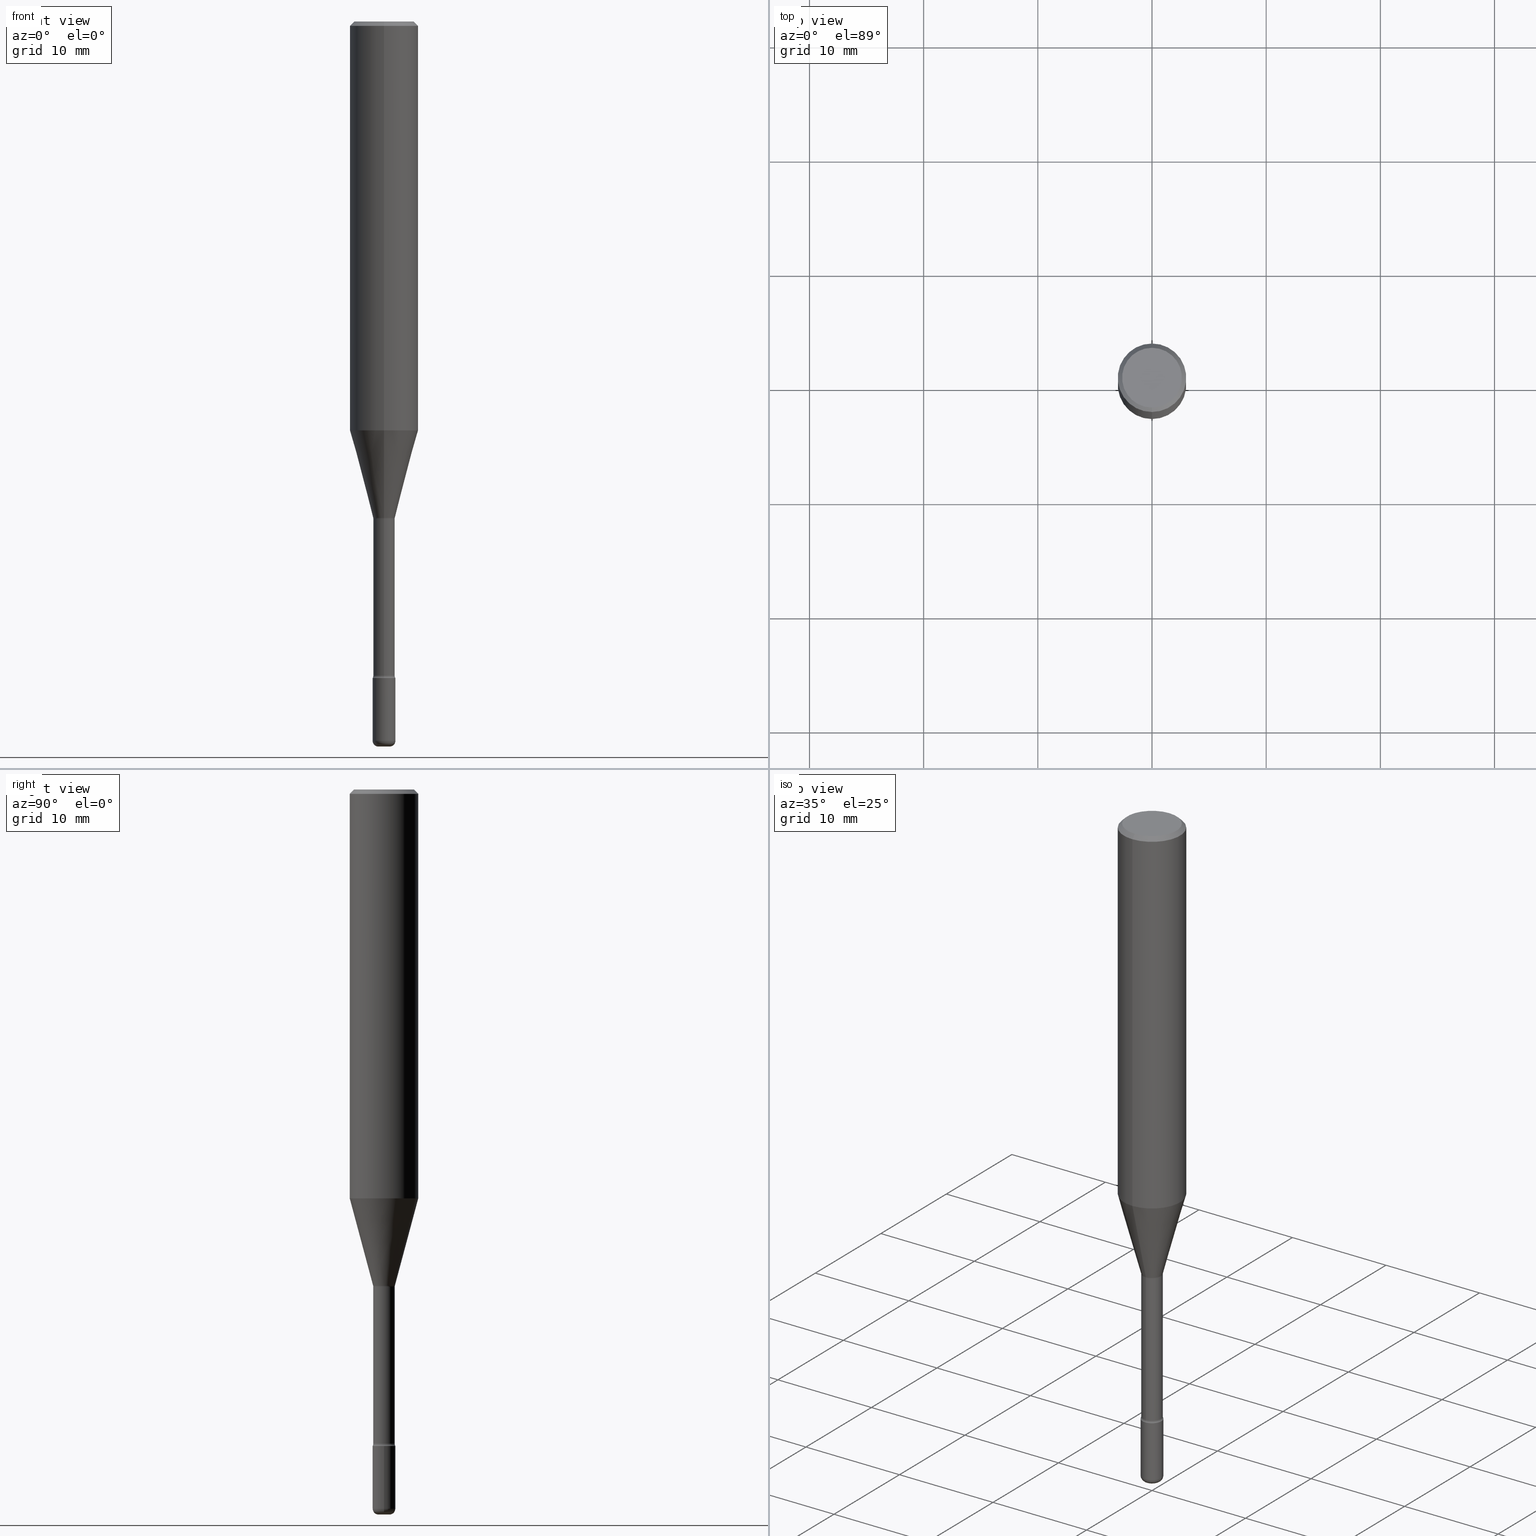
[diagram: canonical four-view strip — front | top / right | iso, engineering-drawing reading convention]
A machine part, canonical four-view strip (front | top / right | iso — engineering-drawing reading convention). The complete STEP part file that produces these views, byte-faithful:
ISO-10303-21;
HEADER;
FILE_DESCRIPTION (( 'STEP AP203' ),
    '1' );
FILE_NAME ('05355.STEP',
    '2024-03-06T20:02:07',
    ( '' ),
    ( '' ),
    'SwSTEP 2.0',
    'SolidWorks 2023',
    '' );
FILE_SCHEMA (( 'CONFIG_CONTROL_DESIGN' ));
ENDSEC;

DATA;
#1 = CARTESIAN_POINT ( 'NONE',  ( 0.03935000000000008630, -8.934700746099610252E-15, -2.480300000000000171 ) ) ;
#2 = VECTOR ( 'NONE', #198, 39.37007874015748854 ) ;
#3 = CARTESIAN_POINT ( 'NONE',  ( 7.031006082703593828E-46, -1.004986571345311282E-31, -2.876753408151994532E-17 ) ) ;
#4 = DIRECTION ( 'NONE',  ( -1.000000000000000000, 7.105427357601014480E-15, 0.000000000000000000 ) ) ;
#5 = EDGE_CURVE ( 'NONE', #390, #466, #58, .T. ) ;
#6 = DIRECTION ( 'NONE',  ( 2.438088387897960049E-29, -3.491481338843145188E-15, -1.000000000000000000 ) ) ;
#7 = ORIENTED_EDGE ( 'NONE', *, *, #530, .F. ) ;
#8 = CC_DESIGN_SECURITY_CLASSIFICATION ( #184, ( #201 ) ) ;
#9 = DIRECTION ( 'NONE',  ( -2.445468806185136597E-29, 3.491481338843145583E-15, 1.000000000000000000 ) ) ;
#10 = DATE_TIME_ROLE ( 'classification_date' ) ;
#11 = DIRECTION ( 'NONE',  ( 1.000000000000000000, -6.982962677686264344E-15, 4.883557194083111780E-29 ) ) ;
#12 = TOROIDAL_SURFACE ( 'NONE', #133, 0.05200000000000006006, 0.01500000000000001506 ) ;
#13 = CARTESIAN_POINT ( 'NONE',  ( 0.01965000000000000427, -8.797136381349191038E-15, -2.480300000000000171 ) ) ;
#14 = LENGTH_MEASURE_WITH_UNIT ( LENGTH_MEASURE( 0.02539999999999999897 ), #508 );
#15 = AXIS2_PLACEMENT_3D ( 'NONE', #202, #208, #379 ) ;
#16 = LOCAL_TIME ( 15, 2, 7.000000000000000000, #98 ) ;
#17 = DIRECTION ( 'NONE',  ( 1.000000000000000000, -7.105427357601001070E-15, 4.926316894222029901E-29 ) ) ;
#18 = CARTESIAN_POINT ( 'NONE',  ( -2.583696190743369715E-16, -0.03700000000000792238, -2.255739137763241420 ) ) ;
#19 = CC_DESIGN_PERSON_AND_ORGANIZATION_ASSIGNMENT ( #407, #226, ( #201 ) ) ;
#20 = ORIENTED_EDGE ( 'NONE', *, *, #297, .T. ) ;
#21 = CC_DESIGN_PERSON_AND_ORGANIZATION_ASSIGNMENT ( #235, #504, ( #65 ) ) ;
#22 = CARTESIAN_POINT ( 'NONE',  ( -2.619386993237965275E-16, -0.03751111260566995093, -1.710692501787273390 ) ) ;
#23 = AXIS2_PLACEMENT_3D ( 'NONE', #3, #179, #520 ) ;
#24 = ORIENTED_EDGE ( 'NONE', *, *, #32, .T. ) ;
#25 = EDGE_CURVE ( 'NONE', #571, #527, #319, .T. ) ;
#26 = AXIS2_PLACEMENT_3D ( 'NONE', #155, #412, #328 ) ;
#27 = CYLINDRICAL_SURFACE ( 'NONE', #176, 0.03700000000000002592 ) ;
#28 = CIRCLE ( 'NONE', #254, 0.01500000000000002720 ) ;
#29 = ORIENTED_EDGE ( 'NONE', *, *, #498, .T. ) ;
#30 = EDGE_CURVE ( 'NONE', #366, #70, #308, .T. ) ;
#31 = CARTESIAN_POINT ( 'NONE',  ( -7.587710785535310407E-16, -0.1031000000000000111, 3.312158576516512539E-16 ) ) ;
#32 = EDGE_CURVE ( 'NONE', #304, #246, #361, .T. ) ;
#33 = ORIENTED_EDGE ( 'NONE', *, *, #395, .T. ) ;
#34 = DIRECTION ( 'NONE',  ( -6.982962677686265922E-15, -1.000000000000000000, 3.491594488197586527E-15 ) ) ;
#35 = DIRECTION ( 'NONE',  ( -2.445389794413230210E-29, 3.491594488197586527E-15, 1.000000000000000000 ) ) ;
#36 = ORIENTED_EDGE ( 'NONE', *, *, #391, .T. ) ;
#37 = CC_DESIGN_APPROVAL ( #368, ( #184 ) ) ;
#38 = DIRECTION ( 'NONE',  ( 1.000000000000000000, -6.982962677686307731E-15, 0.000000000000000000 ) ) ;
#39 = ORIENTED_EDGE ( 'NONE', *, *, #352, .T. ) ;
#40 = DIRECTION ( 'NONE',  ( -6.982962677686265133E-15, -1.000000000000000000, 3.491594488197586922E-15 ) ) ;
#41 = CARTESIAN_POINT ( 'NONE',  ( 4.183309985249835233E-29, -5.973044510241383254E-15, -1.710692501787273390 ) ) ;
#42 = FACE_OUTER_BOUND ( 'NONE', #112, .T. ) ;
#43 = CONICAL_SURFACE ( 'NONE', #415, 0.03751111260566397654, 0.2617993877991500740 ) ;
#44 = CARTESIAN_POINT ( 'NONE',  ( -2.583696190743498891E-16, -0.03700000000000598643, -1.714574787463811312 ) ) ;
#45 = ADVANCED_FACE ( 'NONE', ( #42 ), #12, .F. ) ;
#46 = CARTESIAN_POINT ( 'NONE',  ( 5.536052283441912610E-29, -7.904015454873113525E-15, -2.263800000000000257 ) ) ;
#47 = FACE_OUTER_BOUND ( 'NONE', #84, .T. ) ;
#48 = VECTOR ( 'NONE', #264, 39.37007874015748854 ) ;
#49 = PRODUCT ( '05355', '05355', '', ( #500 ) ) ;
#50 = PERSON_AND_ORGANIZATION ( #135, #533 ) ;
#51 = CARTESIAN_POINT ( 'NONE',  ( 2.629008122312372037E-16, 0.03700000000000002592, 3.488844028279352540E-16 ) ) ;
#52 = TOROIDAL_SURFACE ( 'NONE', #64, 0.01965000000000000427, 0.01970000000000016877 ) ;
#53 = CALENDAR_DATE ( 2024, 6, 3 ) ;
#54 = LOCAL_TIME ( 15, 2, 7.000000000000000000, #467 ) ;
#55 = DIRECTION ( 'NONE',  ( -6.982962677686265922E-15, -1.000000000000000000, 3.487819265831411744E-15 ) ) ;
#56 = CALENDAR_DATE ( 2024, 6, 3 ) ;
#57 = FACE_OUTER_BOUND ( 'NONE', #128, .T. ) ;
#58 = CIRCLE ( 'NONE', #491, 0.1031000000000000111 ) ;
#59 = APPLICATION_PROTOCOL_DEFINITION ( 'international standard', 'config_control_design', 1994, #288 ) ;
#60 = CARTESIAN_POINT ( 'NONE',  ( 6.065496279980994755E-29, -8.659921164732655335E-15, -2.480300000000000171 ) ) ;
#61 = CC_DESIGN_DATE_AND_TIME_ASSIGNMENT ( #230, #10, ( #184 ) ) ;
#62 = VERTEX_POINT ( 'NONE', #1 ) ;
#63 = COORDINATED_UNIVERSAL_TIME_OFFSET ( 5, 0, .BEHIND. ) ;
#64 = AXIS2_PLACEMENT_3D ( 'NONE', #374, #473, #162 ) ;
#65 = PRODUCT_DEFINITION ( 'UNKNOWN', '', #201, #558 ) ;
#66 = EDGE_LOOP ( 'NONE', ( #418, #430, #199, #354 ) ) ;
#67 = CALENDAR_DATE ( 2024, 6, 3 ) ;
#68 = ORIENTED_EDGE ( 'NONE', *, *, #481, .F. ) ;
#69 = CARTESIAN_POINT ( 'NONE',  ( 4.183309985249835233E-29, -5.973044510241383254E-15, -1.710692501787273390 ) ) ;
#70 = VERTEX_POINT ( 'NONE', #342 ) ;
#71 = ADVANCED_FACE ( 'NONE', ( #521 ), #442, .T. ) ;
#72 = FACE_OUTER_BOUND ( 'NONE', #160, .T. ) ;
#73 = CIRCLE ( 'NONE', #127, 0.01965000000000000774 ) ;
#74 = ORIENTED_EDGE ( 'NONE', *, *, #476, .T. ) ;
#75 = FACE_OUTER_BOUND ( 'NONE', #272, .T. ) ;
#76 = FACE_OUTER_BOUND ( 'NONE', #326, .T. ) ;
#77 = VERTEX_POINT ( 'NONE', #345 ) ;
#78 = DIRECTION ( 'NONE',  ( -6.982962677686265133E-15, -1.000000000000000000, 3.491594488197586922E-15 ) ) ;
#79 = CARTESIAN_POINT ( 'NONE',  ( 7.031006082703593828E-46, -1.004986571345311282E-31, -2.876753408151994532E-17 ) ) ;
#80 = EDGE_CURVE ( 'NONE', #390, #140, #210, .T. ) ;
#81 = CIRCLE ( 'NONE', #157, 0.03700000000000004674 ) ;
#82 = CARTESIAN_POINT ( 'NONE',  ( 4.183309985249835233E-29, -5.973044510241383254E-15, -1.710692501787273390 ) ) ;
#83 = CARTESIAN_POINT ( 'NONE',  ( 4.192939158614261028E-29, -5.986405874480849195E-15, -1.714574787463811312 ) ) ;
#84 = EDGE_LOOP ( 'NONE', ( #525, #490, #484, #483 ) ) ;
#85 = DIRECTION ( 'NONE',  ( -6.982962677686266711E-15, -1.000000000000000000, 3.491594488197586527E-15 ) ) ;
#86 = CARTESIAN_POINT ( 'NONE',  ( 5.516339696290963268E-29, -7.875871104798485207E-15, -2.255739137763241420 ) ) ;
#87 = CC_DESIGN_DATE_AND_TIME_ASSIGNMENT ( #279, #283, ( #65 ) ) ;
#88 = CARTESIAN_POINT ( 'NONE',  ( -3.631140592396439489E-16, -0.05200000000000598588, -1.714574787463810868 ) ) ;
#89 = ORIENTED_EDGE ( 'NONE', *, *, #396, .F. ) ;
#90 = CIRCLE ( 'NONE', #404, 0.03700000000000004674 ) ;
#91 = APPROVAL_PERSON_ORGANIZATION ( #371, #327, #273 ) ;
#92 = DIRECTION ( 'NONE',  ( 4.937700262164546464E-15, 0.7071067811865449082, -0.7071067811865501263 ) ) ;
#93 = DIRECTION ( 'NONE',  ( 1.000000000000000000, -6.982962677686266711E-15, 4.876176775795936353E-29 ) ) ;
#94 = CYLINDRICAL_SURFACE ( 'NONE', #294, 0.1180999999999999966 ) ;
#95 = VECTOR ( 'NONE', #364, 39.37007874015748143 ) ;
#96 = PLANE ( 'NONE',  #531 ) ;
#97 = ORIENTED_EDGE ( 'NONE', *, *, #169, .F. ) ;
#98 = COORDINATED_UNIVERSAL_TIME_OFFSET ( 5, 0, .BEHIND. ) ;
#99 = PLANE ( 'NONE',  #219 ) ;
#100 = CIRCLE ( 'NONE', #244, 0.03699999999999999817 ) ;
#101 = CIRCLE ( 'NONE', #182, 0.03935000000000000303 ) ;
#102 =( CONVERSION_BASED_UNIT ( 'INCH', #14 ) LENGTH_UNIT ( ) NAMED_UNIT ( #271 ) );
#103 = APPROVAL_PERSON_ORGANIZATION ( #188, #368, #287 ) ;
#104 = CARTESIAN_POINT ( 'NONE',  ( 0.01965000000000000774, -8.865918563724402223E-15, -2.500000000000000444 ) ) ;
#105 = ORIENTED_EDGE ( 'NONE', *, *, #209, .F. ) ;
#106 = DIRECTION ( 'NONE',  ( -2.445468806185136597E-29, 3.491481338843145583E-15, 1.000000000000000000 ) ) ;
#107 = CIRCLE ( 'NONE', #23, 0.1031000000000000111 ) ;
#108 = EDGE_CURVE ( 'NONE', #466, #390, #107, .T. ) ;
#109 = ORIENTED_EDGE ( 'NONE', *, *, #401, .F. ) ;
#110 = DATE_AND_TIME ( #67, #54 ) ;
#111 = AXIS2_PLACEMENT_3D ( 'NONE', #113, #565, #158 ) ;
#112 = EDGE_LOOP ( 'NONE', ( #560, #239, #449, #120 ) ) ;
#113 = CARTESIAN_POINT ( 'NONE',  ( 5.516339696290963268E-29, -7.875871104798485207E-15, -2.255739137763241420 ) ) ;
#114 = VERTEX_POINT ( 'NONE', #177 ) ;
#115 = AXIS2_PLACEMENT_3D ( 'NONE', #433, #256, #125 ) ;
#116 = CARTESIAN_POINT ( 'NONE',  ( 5.536052283441912610E-29, -7.904015454873113525E-15, -2.263800000000000257 ) ) ;
#117 = ORIENTED_EDGE ( 'NONE', *, *, #370, .F. ) ;
#118 = VECTOR ( 'NONE', #227, 39.37007874015748143 ) ;
#119 = LOCAL_TIME ( 15, 2, 7.000000000000000000, #152 ) ;
#120 = ORIENTED_EDGE ( 'NONE', *, *, #25, .F. ) ;
#121 = DIRECTION ( 'NONE',  ( -2.445389794413230210E-29, 3.491594488197586133E-15, 1.000000000000000000 ) ) ;
#122 = DIRECTION ( 'NONE',  ( -2.445389794413230210E-29, 3.491594488197586527E-15, 1.000000000000000000 ) ) ;
#123 = CARTESIAN_POINT ( 'NONE',  ( 7.199434520694541042E-16, 0.1031000000000000111, -1.353304593283080756E-16 ) ) ;
#124 = EDGE_CURVE ( 'NONE', #546, #140, #505, .T. ) ;
#125 = DIRECTION ( 'NONE',  ( -6.982962677686266711E-15, -1.000000000000000000, 0.000000000000000000 ) ) ;
#126 = FACE_OUTER_BOUND ( 'NONE', #411, .T. ) ;
#127 = AXIS2_PLACEMENT_3D ( 'NONE', #359, #545, #142 ) ;
#128 = EDGE_LOOP ( 'NONE', ( #36, #24 ) ) ;
#129 = ADVANCED_BREP_SHAPE_REPRESENTATION ( '05355', ( #489, #493, #348 ), #301 ) ;
#130 = ORIENTED_EDGE ( 'NONE', *, *, #30, .F. ) ;
#131 = EDGE_CURVE ( 'NONE', #366, #339, #144, .T. ) ;
#132 = FACE_OUTER_BOUND ( 'NONE', #463, .T. ) ;
#133 = AXIS2_PLACEMENT_3D ( 'NONE', #86, #171, #260 ) ;
#134 = CARTESIAN_POINT ( 'NONE',  ( 3.668084691619852076E-31, -5.237391732296389553E-17, -0.01500000000000002720 ) ) ;
#135 = PERSON ( 'UNSPECIFIED', 'UNSPECIFIED', 'UNSPECIFIED', ('UNSPECIFIED'), ('UNSPECIFIED'), ('UNSPECIFIED') ) ;
#136 = DIRECTION ( 'NONE',  ( 1.000000000000000000, -6.982962677686244622E-15, 0.000000000000000000 ) ) ;
#137 = DIRECTION ( 'NONE',  ( -2.445389794413230210E-29, 3.491594488197586527E-15, 1.000000000000000000 ) ) ;
#138 = VECTOR ( 'NONE', #332, 39.37007874015748143 ) ;
#139 = FACE_OUTER_BOUND ( 'NONE', #549, .T. ) ;
#140 = VERTEX_POINT ( 'NONE', #478 ) ;
#141 = PERSON_AND_ORGANIZATION ( #135, #533 ) ;
#142 = DIRECTION ( 'NONE',  ( 1.000000000000000000, -6.982962677686307731E-15, 0.000000000000000000 ) ) ;
#143 = CARTESIAN_POINT ( 'NONE',  ( 5.535873416592669930E-29, -7.904271602381696362E-15, -2.263800000000000257 ) ) ;
#144 = CIRCLE ( 'NONE', #115, 0.03751111260566397654 ) ;
#145 = APPROVAL_STATUS ( 'not_yet_approved' ) ;
#146 = DIRECTION ( 'NONE',  ( -6.982962677686266711E-15, -1.000000000000000000, 0.000000000000000000 ) ) ;
#147 = AXIS2_PLACEMENT_3D ( 'NONE', #250, #212, #38 ) ;
#148 = CARTESIAN_POINT ( 'NONE',  ( 8.391509709326781971E-16, 0.1180999999999999966, 6.571608983511112252E-17 ) ) ;
#149 = DIRECTION ( 'NONE',  ( -6.982962677686266711E-15, -1.000000000000000000, 3.491481338843145583E-15 ) ) ;
#150 = ORIENTED_EDGE ( 'NONE', *, *, #108, .F. ) ;
#151 = EDGE_CURVE ( 'NONE', #339, #366, #258, .T. ) ;
#152 = COORDINATED_UNIVERSAL_TIME_OFFSET ( 5, 0, .BEHIND. ) ;
#153 = ORIENTED_EDGE ( 'NONE', *, *, #261, .F. ) ;
#154 = APPROVAL_STATUS ( 'not_yet_approved' ) ;
#155 = CARTESIAN_POINT ( 'NONE',  ( 3.447830094494486299E-29, -4.922906189304403806E-15, -1.409930679506165019 ) ) ;
#156 = VERTEX_POINT ( 'NONE', #180 ) ;
#157 = AXIS2_PLACEMENT_3D ( 'NONE', #532, #524, #314 ) ;
#158 = DIRECTION ( 'NONE',  ( -6.982962677686265133E-15, -1.000000000000000000, 3.491594488197586527E-15 ) ) ;
#159 = AXIS2_PLACEMENT_3D ( 'NONE', #528, #441, #136 ) ;
#160 = EDGE_LOOP ( 'NONE', ( #168, #502, #241, #68 ) ) ;
#161 = ORIENTED_EDGE ( 'NONE', *, *, #32, .F. ) ;
#162 = DIRECTION ( 'NONE',  ( 1.000000000000000000, -6.982962677686264344E-15, 4.883557194083111780E-29 ) ) ;
#163 = EDGE_CURVE ( 'NONE', #77, #403, #557, .T. ) ;
#164 = CARTESIAN_POINT ( 'NONE',  ( 5.535873416592669930E-29, -7.904271602381696362E-15, -2.263800000000000257 ) ) ;
#165 = ORIENTED_EDGE ( 'NONE', *, *, #550, .F. ) ;
#166 = DIRECTION ( 'NONE',  ( -2.445468806185136877E-29, 3.491481338843145188E-15, 1.000000000000000000 ) ) ;
#167 = AXIS2_PLACEMENT_3D ( 'NONE', #311, #277, #448 ) ;
#168 = ORIENTED_EDGE ( 'NONE', *, *, #151, .T. ) ;
#169 = EDGE_CURVE ( 'NONE', #197, #554, #451, .T. ) ;
#170 = LINE ( 'NONE', #336, #138 ) ;
#171 = DIRECTION ( 'NONE',  ( -2.445389794413230210E-29, 3.491594488197586527E-15, 1.000000000000000000 ) ) ;
#172 = UNCERTAINTY_MEASURE_WITH_UNIT (LENGTH_MEASURE( 1.000000000000000082E-05 ), #102, 'distance_accuracy_value', 'NONE');
#173 = ORIENTED_EDGE ( 'NONE', *, *, #175, .F. ) ;
#174 = DIRECTION ( 'NONE',  ( -6.982962677686266711E-15, -1.000000000000000000, 0.000000000000000000 ) ) ;
#175 = EDGE_CURVE ( 'NONE', #292, #140, #497, .T. ) ;
#176 = AXIS2_PLACEMENT_3D ( 'NONE', #385, #392, #78 ) ;
#177 = CARTESIAN_POINT ( 'NONE',  ( 2.795985665216547635E-16, 0.03934999999999209963, -2.263800000000000257 ) ) ;
#178 = CARTESIAN_POINT ( 'NONE',  ( 3.447830094494486299E-29, -4.922906189304403806E-15, -1.409930679506165019 ) ) ;
#179 = DIRECTION ( 'NONE',  ( -2.445389794413230210E-29, 3.491594488197586527E-15, 1.000000000000000000 ) ) ;
#180 = CARTESIAN_POINT ( 'NONE',  ( 2.712496893764736677E-16, 0.03699999999999217110, -2.255739137763241420 ) ) ;
#181 = DIRECTION ( 'NONE',  ( -1.000000000000000000, 6.982962677686265922E-15, -4.876176775795935793E-29 ) ) ;
#182 = AXIS2_PLACEMENT_3D ( 'NONE', #164, #562, #431 ) ;
#183 = ORIENTED_EDGE ( 'NONE', *, *, #487, .F. ) ;
#184 = SECURITY_CLASSIFICATION ( '', '', #454 ) ;
#185 = ADVANCED_FACE ( 'NONE', ( #537 ), #488, .T. ) ;
#186 = DATE_AND_TIME ( #56, #119 ) ;
#187 = DIRECTION ( 'NONE',  ( -2.445389794413230210E-29, 3.491594488197586527E-15, 1.000000000000000000 ) ) ;
#188 = PERSON_AND_ORGANIZATION ( #135, #533 ) ;
#189 = LINE ( 'NONE', #148, #194 ) ;
#190 = DIRECTION ( 'NONE',  ( -6.982962677686265922E-15, -1.000000000000000000, 3.491594488197586133E-15 ) ) ;
#191 =( NAMED_UNIT ( * ) PLANE_ANGLE_UNIT ( ) SI_UNIT ( $, .RADIAN. ) );
#192 = ADVANCED_FACE ( 'NONE', ( #353 ), #458, .T. ) ;
#193 = DIRECTION ( 'NONE',  ( 1.000000000000000000, -6.982962677686265922E-15, 4.876176775795935793E-29 ) ) ;
#194 = VECTOR ( 'NONE', #121, 39.37007874015748143 ) ;
#195 = EDGE_CURVE ( 'NONE', #554, #197, #100, .T. ) ;
#196 = VERTEX_POINT ( 'NONE', #104 ) ;
#197 = VERTEX_POINT ( 'NONE', #360 ) ;
#198 = DIRECTION ( 'NONE',  ( -1.807323732225328562E-15, -0.2588190451025179639, 0.9659258262890690894 ) ) ;
#199 = ORIENTED_EDGE ( 'NONE', *, *, #391, .F. ) ;
#200 = AXIS2_PLACEMENT_3D ( 'NONE', #455, #534, #55 ) ;
#201 = PRODUCT_DEFINITION_FORMATION_WITH_SPECIFIED_SOURCE ( 'ANY', '', #49, .NOT_KNOWN. ) ;
#202 = CARTESIAN_POINT ( 'NONE',  ( 4.192939158614261028E-29, -5.986405874480849195E-15, -1.714574787463811312 ) ) ;
#203 = ORIENTED_EDGE ( 'NONE', *, *, #395, .F. ) ;
#204 = FACE_OUTER_BOUND ( 'NONE', #330, .T. ) ;
#205 = DIRECTION ( 'NONE',  ( -2.445468806185136597E-29, 3.491481338843145583E-15, 1.000000000000000000 ) ) ;
#206 = ORIENTED_EDGE ( 'NONE', *, *, #261, .T. ) ;
#207 = DIRECTION ( 'NONE',  ( 7.105427357601001859E-15, 1.000000000000000000, 0.000000000000000000 ) ) ;
#208 = DIRECTION ( 'NONE',  ( -2.445389794413230210E-29, 3.491594488197586527E-15, 1.000000000000000000 ) ) ;
#209 = EDGE_CURVE ( 'NONE', #114, #527, #253, .T. ) ;
#210 = LINE ( 'NONE', #397, #281 ) ;
#211 = AXIS2_PLACEMENT_3D ( 'NONE', #116, #205, #381 ) ;
#212 = DIRECTION ( 'NONE',  ( -2.445468806185136597E-29, 3.491481338843145583E-15, 1.000000000000000000 ) ) ;
#213 = CARTESIAN_POINT ( 'NONE',  ( -3.631140592396311299E-16, -0.05200000000000794265, -2.255739137763241420 ) ) ;
#214 = DIRECTION ( 'NONE',  ( -2.445389794413230210E-29, 3.491594488197586527E-15, 1.000000000000000000 ) ) ;
#215 = EDGE_LOOP ( 'NONE', ( #278, #150, #406, #333 ) ) ;
#216 = AXIS2_PLACEMENT_3D ( 'NONE', #82, #438, #146 ) ;
#217 = DIRECTION ( 'NONE',  ( 1.000000000000000000, -6.982962677686269077E-15, 0.000000000000000000 ) ) ;
#218 = CARTESIAN_POINT ( 'NONE',  ( -1.169113584055446105E-44, 1.669184350826100908E-30, 4.780733988912460139E-16 ) ) ;
#219 = AXIS2_PLACEMENT_3D ( 'NONE', #46, #274, #193 ) ;
#220 = DIRECTION ( 'NONE',  ( -2.445389794413230210E-29, 3.491594488197586527E-15, 1.000000000000000000 ) ) ;
#221 = CARTESIAN_POINT ( 'NONE',  ( 0.03935000000000000303, -8.178795036240066864E-15, -2.263800000000000257 ) ) ;
#222 = CLOSED_SHELL ( 'NONE', ( #538, #71, #45, #517, #507, #334, #499, #398, #224, #453, #293, #432, #377, #378 ) ) ;
#223 = PLANE ( 'NONE',  #237 ) ;
#224 = ADVANCED_FACE ( 'NONE', ( #402 ), #522, .T. ) ;
#225 = ORIENTED_EDGE ( 'NONE', *, *, #305, .F. ) ;
#226 = PERSON_AND_ORGANIZATION_ROLE ( 'design_supplier' ) ;
#227 = DIRECTION ( 'NONE',  ( -2.445389794413230210E-29, 3.491594488197586133E-15, 1.000000000000000000 ) ) ;
#228 = VECTOR ( 'NONE', #92, 39.37007874015748143 ) ;
#229 = LOCAL_TIME ( 15, 2, 7.000000000000000000, #269 ) ;
#230 = DATE_AND_TIME ( #53, #16 ) ;
#231 = CARTESIAN_POINT ( 'NONE',  ( 6.065496279980994755E-29, -8.659921164732655335E-15, -2.480300000000000171 ) ) ;
#232 = APPROVAL_DATE_TIME ( #321, #559 ) ;
#233 = ADVANCED_FACE ( 'NONE', ( #57 ), #99, .T. ) ;
#234 = CARTESIAN_POINT ( 'NONE',  ( -8.246878922347136513E-16, -0.1181000000000049094, -1.409930679506164797 ) ) ;
#235 = PERSON_AND_ORGANIZATION ( #135, #533 ) ;
#236 = DIRECTION ( 'NONE',  ( -2.445468806185136597E-29, 3.491481338843145583E-15, 1.000000000000000000 ) ) ;
#237 = AXIS2_PLACEMENT_3D ( 'NONE', #316, #6, #181 ) ;
#238 = CARTESIAN_POINT ( 'NONE',  ( 0.000000000000000000, 0.000000000000000000, 0.000000000000000000 ) ) ;
#239 = ORIENTED_EDGE ( 'NONE', *, *, #460, .T. ) ;
#240 = APPROVAL_DATE_TIME ( #110, #368 ) ;
#241 = ORIENTED_EDGE ( 'NONE', *, *, #409, .F. ) ;
#242 = DIRECTION ( 'NONE',  ( 6.982962677686265922E-15, 1.000000000000000000, -3.491594488197586133E-15 ) ) ;
#243 = ORIENTED_EDGE ( 'NONE', *, *, #460, .F. ) ;
#244 = AXIS2_PLACEMENT_3D ( 'NONE', #542, #137, #322 ) ;
#245 = AXIS2_PLACEMENT_3D ( 'NONE', #178, #479, #303 ) ;
#246 = VERTEX_POINT ( 'NONE', #221 ) ;
#247 = CC_DESIGN_PERSON_AND_ORGANIZATION_ASSIGNMENT ( #50, #317, ( #201 ) ) ;
#248 = DIRECTION ( 'NONE',  ( -2.445389794413230210E-29, 3.491594488197586133E-15, 1.000000000000000000 ) ) ;
#249 = ORIENTED_EDGE ( 'NONE', *, *, #169, .T. ) ;
#250 = CARTESIAN_POINT ( 'NONE',  ( 6.113672015462842613E-29, -8.728703347107866520E-15, -2.500000000000000444 ) ) ;
#251 = EDGE_LOOP ( 'NONE', ( #475, #375, #74, #161 ) ) ;
#252 = CARTESIAN_POINT ( 'NONE',  ( 3.694822225953075958E-16, 0.05199999999999218442, -2.255739137763241864 ) ) ;
#253 = CIRCLE ( 'NONE', #485, 0.03935000000000000303 ) ;
#254 = AXIS2_PLACEMENT_3D ( 'NONE', #88, #262, #444 ) ;
#255 = DIRECTION ( 'NONE',  ( -2.445389794413230210E-29, 3.491594488197586527E-15, 1.000000000000000000 ) ) ;
#256 = DIRECTION ( 'NONE',  ( -2.445389794413230210E-29, 3.491594488197586527E-15, 1.000000000000000000 ) ) ;
#257 = ORIENTED_EDGE ( 'NONE', *, *, #131, .F. ) ;
#258 = CIRCLE ( 'NONE', #216, 0.03751111260566397654 ) ;
#259 = DIRECTION ( 'NONE',  ( 2.445389794413230210E-29, -3.491594488197586527E-15, -1.000000000000000000 ) ) ;
#260 = DIRECTION ( 'NONE',  ( -6.982962677686265133E-15, -1.000000000000000000, 3.491594488197586527E-15 ) ) ;
#261 = EDGE_CURVE ( 'NONE', #140, #546, #509, .T. ) ;
#262 = DIRECTION ( 'NONE',  ( -1.000000000000000000, 6.982962677686265922E-15, -4.883557194083112901E-29 ) ) ;
#263 = AXIS2_PLACEMENT_3D ( 'NONE', #446, #9, #93 ) ;
#264 = DIRECTION ( 'NONE',  ( 1.839019923739598738E-15, 0.2588190451025247363, 0.9659258262890673130 ) ) ;
#265 = FACE_OUTER_BOUND ( 'NONE', #268, .T. ) ;
#266 = CC_DESIGN_PERSON_AND_ORGANIZATION_ASSIGNMENT ( #457, #417, ( #49 ) ) ;
#267 = DIRECTION ( 'NONE',  ( -2.445389794413230210E-29, 3.491594488197586527E-15, 1.000000000000000000 ) ) ;
#268 = EDGE_LOOP ( 'NONE', ( #130, #510, #470, #7 ) ) ;
#269 = COORDINATED_UNIVERSAL_TIME_OFFSET ( 5, 0, .BEHIND. ) ;
#270 = CARTESIAN_POINT ( 'NONE',  ( 2.747795813670099893E-16, 0.03934999999999209963, -2.263800000000000257 ) ) ;
#271 = DIMENSIONAL_EXPONENTS ( 1.000000000000000000, 0.000000000000000000, 0.000000000000000000, 0.000000000000000000, 0.000000000000000000, 0.000000000000000000, 0.000000000000000000 ) ;
#272 = EDGE_LOOP ( 'NONE', ( #282, #284 ) ) ;
#273 = APPROVAL_ROLE ( '' ) ;
#274 = DIRECTION ( 'NONE',  ( -2.438088387897960049E-29, 3.491481338843145188E-15, 1.000000000000000000 ) ) ;
#275 = VECTOR ( 'NONE', #248, 39.37007874015748143 ) ;
#276 = ADVANCED_FACE ( 'NONE', ( #47 ), #424, .T. ) ;
#277 = DIRECTION ( 'NONE',  ( 2.445389794413230210E-29, -3.491594488197586527E-15, -1.000000000000000000 ) ) ;
#278 = ORIENTED_EDGE ( 'NONE', *, *, #80, .F. ) ;
#279 = DATE_AND_TIME ( #536, #416 ) ;
#280 = CARTESIAN_POINT ( 'NONE',  ( 3.694822225952939879E-16, 0.05199999999999401629, -1.714574787463811534 ) ) ;
#281 = VECTOR ( 'NONE', #563, 39.37007874015748143 ) ;
#282 = ORIENTED_EDGE ( 'NONE', *, *, #108, .T. ) ;
#283 = DATE_TIME_ROLE ( 'creation_date' ) ;
#284 = ORIENTED_EDGE ( 'NONE', *, *, #5, .T. ) ;
#285 = AXIS2_PLACEMENT_3D ( 'NONE', #252, #421, #207 ) ;
#286 = CONICAL_SURFACE ( 'NONE', #436, 0.1180999999999999966, 0.7853981633974480570 ) ;
#287 = APPROVAL_ROLE ( '' ) ;
#288 = APPLICATION_CONTEXT ( 'configuration controlled 3d designs of mechanical parts and assemblies' ) ;
#289 = ADVANCED_FACE ( 'NONE', ( #399 ), #223, .T. ) ;
#290 = ORIENTED_EDGE ( 'NONE', *, *, #151, .F. ) ;
#291 = ORIENTED_EDGE ( 'NONE', *, *, #195, .F. ) ;
#292 = VERTEX_POINT ( 'NONE', #234 ) ;
#293 = ADVANCED_FACE ( 'NONE', ( #139 ), #96, .F. ) ;
#294 = AXIS2_PLACEMENT_3D ( 'NONE', #218, #447, #526 ) ;
#295 = ORIENTED_EDGE ( 'NONE', *, *, #25, .T. ) ;
#296 = DIRECTION ( 'NONE',  ( -6.982962677686265922E-15, -1.000000000000000000, 3.487819265831411744E-15 ) ) ;
#297 = EDGE_CURVE ( 'NONE', #156, #197, #362, .T. ) ;
#298 = LINE ( 'NONE', #22, #2 ) ;
#299 = ORIENTED_EDGE ( 'NONE', *, *, #309, .T. ) ;
#300 = CIRCLE ( 'NONE', #310, 0.01500000000000002720 ) ;
#301 =( GEOMETRIC_REPRESENTATION_CONTEXT ( 3 ) GLOBAL_UNCERTAINTY_ASSIGNED_CONTEXT ( ( #172 ) ) GLOBAL_UNIT_ASSIGNED_CONTEXT ( ( #102, #191, #495 ) ) REPRESENTATION_CONTEXT ( 'NONE', 'WORKASPACE' ) );
#302 = ORIENTED_EDGE ( 'NONE', *, *, #5, .F. ) ;
#303 = DIRECTION ( 'NONE',  ( -6.982962677686265922E-15, -1.000000000000000000, 4.626330217890369336E-15 ) ) ;
#304 = VERTEX_POINT ( 'NONE', #410 ) ;
#305 = EDGE_CURVE ( 'NONE', #196, #62, #552, .T. ) ;
#306 = AXIS2_PLACEMENT_3D ( 'NONE', #529, #539, #4 ) ;
#307 = CARTESIAN_POINT ( 'NONE',  ( 8.246878922347483612E-16, 0.1180999999999999411, -0.01500000000000044006 ) ) ;
#308 = LINE ( 'NONE', #393, #48 ) ;
#309 = EDGE_CURVE ( 'NONE', #366, #197, #300, .T. ) ;
#310 = AXIS2_PLACEMENT_3D ( 'NONE', #280, #17, #414 ) ;
#311 = CARTESIAN_POINT ( 'NONE',  ( 3.668084691619852076E-31, -5.237391732296389553E-17, -0.01500000000000002720 ) ) ;
#312 = PRODUCT_DEFINITION_SHAPE ( 'NONE', 'NONE',  #65 ) ;
#313 = ORIENTED_EDGE ( 'NONE', *, *, #409, .T. ) ;
#314 = DIRECTION ( 'NONE',  ( -6.982962677686265133E-15, -1.000000000000000000, 0.000000000000000000 ) ) ;
#315 = APPLICATION_CONTEXT ( 'configuration controlled 3d designs of mechanical parts and assemblies' ) ;
#316 = CARTESIAN_POINT ( 'NONE',  ( 1.372152166165963216E-16, 0.01964999999999127861, -2.500000000000000000 ) ) ;
#317 = PERSON_AND_ORGANIZATION_ROLE ( 'creator' ) ;
#318 = CARTESIAN_POINT ( 'NONE',  ( -0.03935000000000008630, -8.380322598211055940E-15, -2.480300000000000171 ) ) ;
#319 = CIRCLE ( 'NONE', #548, 0.01500000000000001159 ) ;
#320 = DIRECTION ( 'NONE',  ( 1.000000000000000000, -6.982962677686266711E-15, 4.876176775795936353E-29 ) ) ;
#321 = DATE_AND_TIME ( #452, #229 ) ;
#322 = DIRECTION ( 'NONE',  ( -6.982962677686266711E-15, -1.000000000000000000, 0.000000000000000000 ) ) ;
#323 = CONICAL_SURFACE ( 'NONE', #365, 0.03751111260566397654, 0.2617993877991500740 ) ;
#324 = CARTESIAN_POINT ( 'NONE',  ( -8.246878922347479668E-16, -0.1180999999999999966, 8.904307079473809916E-16 ) ) ;
#325 = APPROVAL_DATE_TIME ( #186, #327 ) ;
#326 = EDGE_LOOP ( 'NONE', ( #358, #347, #428, #369 ) ) ;
#327 = APPROVAL ( #544, 'UNSPECIFIED' ) ;
#328 = DIRECTION ( 'NONE',  ( -6.982962677686265922E-15, -1.000000000000000000, 4.626330217890369336E-15 ) ) ;
#329 = EDGE_CURVE ( 'NONE', #403, #62, #435, .T. ) ;
#330 = EDGE_LOOP ( 'NONE', ( #243, #89, #295, #33 ) ) ;
#331 = VECTOR ( 'NONE', #166, 39.37007874015748143 ) ;
#332 = DIRECTION ( 'NONE',  ( -2.445468806185136877E-29, 3.491481338843145188E-15, 1.000000000000000000 ) ) ;
#333 = ORIENTED_EDGE ( 'NONE', *, *, #124, .T. ) ;
#334 = ADVANCED_FACE ( 'NONE', ( #72 ), #43, .T. ) ;
#335 = ORIENTED_EDGE ( 'NONE', *, *, #370, .T. ) ;
#336 = CARTESIAN_POINT ( 'NONE',  ( -0.03935000000000000303, 2.795985665215994447E-16, -1.935600958015305291E-30 ) ) ;
#337 = CARTESIAN_POINT ( 'NONE',  ( 5.516161466344729817E-29, -7.876126340225709197E-15, -2.255739137763241420 ) ) ;
#338 = AXIS2_PLACEMENT_3D ( 'NONE', #494, #106, #320 ) ;
#339 = VERTEX_POINT ( 'NONE', #389 ) ;
#340 = AXIS2_PLACEMENT_3D ( 'NONE', #566, #343, #34 ) ;
#341 = DIRECTION ( 'NONE',  ( -6.982962677686266711E-15, -1.000000000000000000, 0.000000000000000000 ) ) ;
#342 = CARTESIAN_POINT ( 'NONE',  ( 8.391509709327121181E-16, 0.1180999999999950423, -1.409930679506165685 ) ) ;
#343 = DIRECTION ( 'NONE',  ( -2.445389794413230210E-29, 3.491594488197586527E-15, 1.000000000000000000 ) ) ;
#344 = CC_DESIGN_PERSON_AND_ORGANIZATION_ASSIGNMENT ( #141, #492, ( #184 ) ) ;
#345 = CARTESIAN_POINT ( 'NONE',  ( -0.01965000000000000774, -8.484702148871030792E-15, -2.500000000000000444 ) ) ;
#346 = CARTESIAN_POINT ( 'NONE',  ( -2.747795813668993022E-16, -0.03935000000000791337, -2.263799999999999812 ) ) ;
#347 = ORIENTED_EDGE ( 'NONE', *, *, #530, .T. ) ;
#348 = AXIS2_PLACEMENT_3D ( 'NONE', #238, #363, #459 ) ;
#349 = DIRECTION ( 'NONE',  ( -6.982962677686266711E-15, -1.000000000000000000, 0.000000000000000000 ) ) ;
#350 = CARTESIAN_POINT ( 'NONE',  ( 8.391509709327129070E-16, 0.1180999999999999411, -0.01500000000000044006 ) ) ;
#351 = ORIENTED_EDGE ( 'NONE', *, *, #297, .F. ) ;
#352 = EDGE_CURVE ( 'NONE', #571, #554, #469, .T. ) ;
#353 = FACE_OUTER_BOUND ( 'NONE', #66, .T. ) ;
#354 = ORIENTED_EDGE ( 'NONE', *, *, #476, .F. ) ;
#355 = CIRCLE ( 'NONE', #147, 0.01965000000000000774 ) ;
#356 = CC_DESIGN_APPROVAL ( #559, ( #201 ) ) ;
#357 = DIRECTION ( 'NONE',  ( -6.982962677686266711E-15, -1.000000000000000000, 6.942434545525446301E-15 ) ) ;
#358 = ORIENTED_EDGE ( 'NONE', *, *, #413, .F. ) ;
#359 = CARTESIAN_POINT ( 'NONE',  ( 6.113672015462842613E-29, -8.728703347107866520E-15, -2.500000000000000444 ) ) ;
#360 = CARTESIAN_POINT ( 'NONE',  ( 2.629008122312923746E-16, 0.03699999999999400990, -1.714574787463811312 ) ) ;
#361 = CIRCLE ( 'NONE', #372, 0.03935000000000000303 ) ;
#362 = LINE ( 'NONE', #51, #118 ) ;
#363 = DIRECTION ( 'NONE',  ( 0.000000000000000000, 0.000000000000000000, 1.000000000000000000 ) ) ;
#364 = DIRECTION ( 'NONE',  ( -2.445389794413230210E-29, 3.491594488197586133E-15, 1.000000000000000000 ) ) ;
#365 = AXIS2_PLACEMENT_3D ( 'NONE', #41, #214, #174 ) ;
#366 = VERTEX_POINT ( 'NONE', #555 ) ;
#367 = APPLICATION_PROTOCOL_DEFINITION ( 'international standard', 'config_control_design', 1994, #315 ) ;
#368 = APPROVAL ( #145, 'UNSPECIFIED' ) ;
#369 = ORIENTED_EDGE ( 'NONE', *, *, #124, .F. ) ;
#370 = EDGE_CURVE ( 'NONE', #196, #77, #355, .T. ) ;
#371 = PERSON_AND_ORGANIZATION ( #135, #533 ) ;
#372 = AXIS2_PLACEMENT_3D ( 'NONE', #439, #386, #217 ) ;
#373 = ORIENTED_EDGE ( 'NONE', *, *, #195, .T. ) ;
#374 = CARTESIAN_POINT ( 'NONE',  ( 6.065496279980994755E-29, -8.659921164732655335E-15, -2.480300000000000171 ) ) ;
#375 = ORIENTED_EDGE ( 'NONE', *, *, #329, .T. ) ;
#376 = TOROIDAL_SURFACE ( 'NONE', #15, 0.05200000000000000455, 0.01500000000000002720 ) ;
#377 = ADVANCED_FACE ( 'NONE', ( #437 ), #27, .T. ) ;
#378 = ADVANCED_FACE ( 'NONE', ( #569 ), #376, .F. ) ;
#379 = DIRECTION ( 'NONE',  ( -6.982962677686266711E-15, -1.000000000000000000, 3.491594488197586527E-15 ) ) ;
#380 = ORIENTED_EDGE ( 'NONE', *, *, #309, .F. ) ;
#381 = DIRECTION ( 'NONE',  ( 1.000000000000000000, -6.982962677686269077E-15, 0.000000000000000000 ) ) ;
#382 = EDGE_LOOP ( 'NONE', ( #477, #20, #291, #543 ) ) ;
#383 = CLOSED_SHELL ( 'NONE', ( #192, #434, #233, #289, #276, #185 ) ) ;
#384 = CARTESIAN_POINT ( 'NONE',  ( 7.723156721521011834E-16, 0.1031000000000000111, -3.887509258146911569E-16 ) ) ;
#385 = CARTESIAN_POINT ( 'NONE',  ( -1.169113584055446105E-44, 1.669184350826100908E-30, 4.780733988912460139E-16 ) ) ;
#386 = DIRECTION ( 'NONE',  ( -2.445468806185136597E-29, 3.491481338843145583E-15, 1.000000000000000000 ) ) ;
#387 = CIRCLE ( 'NONE', #211, 0.03935000000000000303 ) ;
#388 = CIRCLE ( 'NONE', #245, 0.1180999999999999966 ) ;
#389 = CARTESIAN_POINT ( 'NONE',  ( -2.619386993237965275E-16, -0.03751111260566995093, -1.710692501787273390 ) ) ;
#390 = VERTEX_POINT ( 'NONE', #31 ) ;
#391 = EDGE_CURVE ( 'NONE', #246, #304, #387, .T. ) ;
#392 = DIRECTION ( 'NONE',  ( -2.445389794413230210E-29, 3.491594488197586527E-15, 1.000000000000000000 ) ) ;
#393 = CARTESIAN_POINT ( 'NONE',  ( 2.665324857223784301E-16, 0.03751111260565800909, -1.710692501787273390 ) ) ;
#394 = DIRECTION ( 'NONE',  ( -2.445389794413230210E-29, 3.491594488197586527E-15, 1.000000000000000000 ) ) ;
#395 = EDGE_CURVE ( 'NONE', #527, #114, #101, .T. ) ;
#396 = EDGE_CURVE ( 'NONE', #571, #156, #90, .T. ) ;
#397 = CARTESIAN_POINT ( 'NONE',  ( -8.102248135368174406E-16, -0.1181000000000000522, -0.01499999999999961607 ) ) ;
#398 = ADVANCED_FACE ( 'NONE', ( #76 ), #429, .T. ) ;
#399 = FACE_OUTER_BOUND ( 'NONE', #506, .T. ) ;
#400 = DIRECTION ( 'NONE',  ( 6.982962677686265922E-15, 1.000000000000000000, -3.487819265831411744E-15 ) ) ;
#401 = EDGE_CURVE ( 'NONE', #77, #196, #73, .T. ) ;
#402 = FACE_OUTER_BOUND ( 'NONE', #215, .T. ) ;
#403 = VERTEX_POINT ( 'NONE', #318 ) ;
#404 = AXIS2_PLACEMENT_3D ( 'NONE', #337, #35, #474 ) ;
#405 = DIRECTION ( 'NONE',  ( -6.982962677686266711E-15, -1.000000000000000000, 0.000000000000000000 ) ) ;
#406 = ORIENTED_EDGE ( 'NONE', *, *, #487, .T. ) ;
#407 = PERSON_AND_ORGANIZATION ( #135, #533 ) ;
#408 = DIRECTION ( 'NONE',  ( -2.445389794413229930E-29, 3.491594488197586133E-15, 1.000000000000000000 ) ) ;
#409 = EDGE_CURVE ( 'NONE', #292, #70, #465, .T. ) ;
#410 = CARTESIAN_POINT ( 'NONE',  ( -0.03935000000000000303, -8.002369743281284246E-15, -2.263800000000000257 ) ) ;
#411 = EDGE_LOOP ( 'NONE', ( #302, #468, #206, #183 ) ) ;
#412 = DIRECTION ( 'NONE',  ( -2.445389794413230210E-29, 3.491594488197586527E-15, 1.000000000000000000 ) ) ;
#413 = EDGE_CURVE ( 'NONE', #70, #546, #189, .T. ) ;
#414 = DIRECTION ( 'NONE',  ( 7.105427357601001859E-15, 1.000000000000000000, 0.000000000000000000 ) ) ;
#415 = AXIS2_PLACEMENT_3D ( 'NONE', #69, #255, #341 ) ;
#416 = LOCAL_TIME ( 15, 2, 7.000000000000000000, #63 ) ;
#417 = PERSON_AND_ORGANIZATION_ROLE ( 'design_owner' ) ;
#418 = ORIENTED_EDGE ( 'NONE', *, *, #540, .T. ) ;
#419 = SHAPE_DEFINITION_REPRESENTATION ( #312, #129 ) ;
#420 = ORIENTED_EDGE ( 'NONE', *, *, #550, .T. ) ;
#421 = DIRECTION ( 'NONE',  ( 1.000000000000000000, -7.105427357601001070E-15, 4.926316894222029901E-29 ) ) ;
#422 = AXIS2_PLACEMENT_3D ( 'NONE', #231, #501, #11 ) ;
#423 = EDGE_LOOP ( 'NONE', ( #351, #29, #39, #97 ) ) ;
#424 = TOROIDAL_SURFACE ( 'NONE', #422, 0.01965000000000000427, 0.01970000000000016877 ) ;
#425 = AXIS2_PLACEMENT_3D ( 'NONE', #83, #572, #85 ) ;
#426 = PLANE ( 'NONE',  #541 ) ;
#427 = CARTESIAN_POINT ( 'NONE',  ( -2.583696190743919945E-16, -0.03700000000000002592, 6.072623949545568724E-16 ) ) ;
#428 = ORIENTED_EDGE ( 'NONE', *, *, #175, .T. ) ;
#429 = CYLINDRICAL_SURFACE ( 'NONE', #340, 0.1180999999999999966 ) ;
#430 = ORIENTED_EDGE ( 'NONE', *, *, #440, .T. ) ;
#431 = DIRECTION ( 'NONE',  ( -6.982962677686266711E-15, -1.000000000000000000, 6.942434545525446301E-15 ) ) ;
#432 = ADVANCED_FACE ( 'NONE', ( #204 ), #496, .F. ) ;
#433 = CARTESIAN_POINT ( 'NONE',  ( 4.183309985249835233E-29, -5.973044510241383254E-15, -1.710692501787273390 ) ) ;
#434 = ADVANCED_FACE ( 'NONE', ( #519 ), #52, .T. ) ;
#435 = CIRCLE ( 'NONE', #471, 0.03935000000000000303 ) ;
#436 = AXIS2_PLACEMENT_3D ( 'NONE', #568, #259, #400 ) ;
#437 = FACE_OUTER_BOUND ( 'NONE', #423, .T. ) ;
#438 = DIRECTION ( 'NONE',  ( -2.445389794413230210E-29, 3.491594488197586527E-15, 1.000000000000000000 ) ) ;
#439 = CARTESIAN_POINT ( 'NONE',  ( 5.536052283441912610E-29, -7.904015454873113525E-15, -2.263800000000000257 ) ) ;
#440 = EDGE_CURVE ( 'NONE', #403, #304, #170, .T. ) ;
#441 = DIRECTION ( 'NONE',  ( -2.445468806185136597E-29, 3.491481338843145583E-15, 1.000000000000000000 ) ) ;
#442 = CYLINDRICAL_SURFACE ( 'NONE', #461, 0.03700000000000002592 ) ;
#443 = AXIS2_PLACEMENT_3D ( 'NONE', #13, #149, #462 ) ;
#444 = DIRECTION ( 'NONE',  ( -6.982962677686267499E-15, -1.000000000000000000, 0.000000000000000000 ) ) ;
#445 = CIRCLE ( 'NONE', #159, 0.03935000000000000303 ) ;
#446 = CARTESIAN_POINT ( 'NONE',  ( 0.000000000000000000, 0.000000000000000000, 0.000000000000000000 ) ) ;
#447 = DIRECTION ( 'NONE',  ( -2.445389794413230210E-29, 3.491594488197586527E-15, 1.000000000000000000 ) ) ;
#448 = DIRECTION ( 'NONE',  ( 6.982962677686265922E-15, 1.000000000000000000, -3.487819265831411744E-15 ) ) ;
#449 = ORIENTED_EDGE ( 'NONE', *, *, #209, .T. ) ;
#450 = PRODUCT_RELATED_PRODUCT_CATEGORY ( 'detail', '', ( #49 ) ) ;
#451 = CIRCLE ( 'NONE', #503, 0.03699999999999999817 ) ;
#452 = CALENDAR_DATE ( 2024, 6, 3 ) ;
#453 = ADVANCED_FACE ( 'NONE', ( #75 ), #426, .F. ) ;
#454 = SECURITY_CLASSIFICATION_LEVEL ( 'unclassified' ) ;
#455 = CARTESIAN_POINT ( 'NONE',  ( 3.668084691619852076E-31, -5.237391732296389553E-17, -0.01500000000000002720 ) ) ;
#456 = DIRECTION ( 'NONE',  ( 1.000000000000000000, -6.982962677686244622E-15, 0.000000000000000000 ) ) ;
#457 = PERSON_AND_ORGANIZATION ( #135, #533 ) ;
#458 = CYLINDRICAL_SURFACE ( 'NONE', #263, 0.03935000000000000303 ) ;
#459 = DIRECTION ( 'NONE',  ( 1.000000000000000000, 0.000000000000000000, 0.000000000000000000 ) ) ;
#460 = EDGE_CURVE ( 'NONE', #156, #114, #515, .T. ) ;
#461 = AXIS2_PLACEMENT_3D ( 'NONE', #518, #220, #40 ) ;
#462 = DIRECTION ( 'NONE',  ( 1.000000000000000000, -6.982962677686268288E-15, 0.000000000000000000 ) ) ;
#463 = EDGE_LOOP ( 'NONE', ( #313, #513, #153, #173 ) ) ;
#464 = APPROVAL_ROLE ( '' ) ;
#465 = CIRCLE ( 'NONE', #26, 0.1180999999999999966 ) ;
#466 = VERTEX_POINT ( 'NONE', #384 ) ;
#467 = COORDINATED_UNIVERSAL_TIME_OFFSET ( 5, 0, .BEHIND. ) ;
#468 = ORIENTED_EDGE ( 'NONE', *, *, #80, .T. ) ;
#469 = LINE ( 'NONE', #427, #275 ) ;
#470 = ORIENTED_EDGE ( 'NONE', *, *, #481, .T. ) ;
#471 = AXIS2_PLACEMENT_3D ( 'NONE', #60, #236, #456 ) ;
#472 = ORIENTED_EDGE ( 'NONE', *, *, #540, .F. ) ;
#473 = DIRECTION ( 'NONE',  ( -2.445468806185136597E-29, 3.491481338843145583E-15, 1.000000000000000000 ) ) ;
#474 = DIRECTION ( 'NONE',  ( -6.982962677686265133E-15, -1.000000000000000000, 0.000000000000000000 ) ) ;
#475 = ORIENTED_EDGE ( 'NONE', *, *, #440, .F. ) ;
#476 = EDGE_CURVE ( 'NONE', #62, #246, #511, .T. ) ;
#477 = ORIENTED_EDGE ( 'NONE', *, *, #396, .T. ) ;
#478 = CARTESIAN_POINT ( 'NONE',  ( -8.246878922347475723E-16, -0.1181000000000000522, -0.01499999999999961607 ) ) ;
#479 = DIRECTION ( 'NONE',  ( -2.445389794413230210E-29, 3.491594488197586527E-15, 1.000000000000000000 ) ) ;
#480 = DIRECTION ( 'NONE',  ( -6.982962677686265922E-15, -1.000000000000000000, 3.491594488197586527E-15 ) ) ;
#481 = EDGE_CURVE ( 'NONE', #339, #292, #298, .T. ) ;
#482 = FACE_OUTER_BOUND ( 'NONE', #512, .T. ) ;
#483 = ORIENTED_EDGE ( 'NONE', *, *, #329, .F. ) ;
#484 = ORIENTED_EDGE ( 'NONE', *, *, #305, .T. ) ;
#485 = AXIS2_PLACEMENT_3D ( 'NONE', #143, #267, #357 ) ;
#486 = CARTESIAN_POINT ( 'NONE',  ( 4.192803687022237208E-29, -5.986599877511191091E-15, -1.714574787463811312 ) ) ;
#487 = EDGE_CURVE ( 'NONE', #466, #546, #551, .T. ) ;
#488 = CYLINDRICAL_SURFACE ( 'NONE', #338, 0.03935000000000000303 ) ;
#489 = MANIFOLD_SOLID_BREP ( 'Body-Move/Copy2[1]', #383 ) ;
#490 = ORIENTED_EDGE ( 'NONE', *, *, #401, .T. ) ;
#491 = AXIS2_PLACEMENT_3D ( 'NONE', #79, #394, #480 ) ;
#492 = PERSON_AND_ORGANIZATION_ROLE ( 'classification_officer' ) ;
#493 = MANIFOLD_SOLID_BREP ( 'Body-Move/Copy2[2]', #222 ) ;
#494 = CARTESIAN_POINT ( 'NONE',  ( 0.000000000000000000, 0.000000000000000000, 0.000000000000000000 ) ) ;
#495 =( NAMED_UNIT ( * ) SI_UNIT ( $, .STERADIAN. ) SOLID_ANGLE_UNIT ( ) );
#496 = TOROIDAL_SURFACE ( 'NONE', #111, 0.05200000000000006006, 0.01500000000000001506 ) ;
#497 = LINE ( 'NONE', #324, #95 ) ;
#498 = EDGE_CURVE ( 'NONE', #156, #571, #81, .T. ) ;
#499 = ADVANCED_FACE ( 'NONE', ( #265 ), #323, .T. ) ;
#500 = MECHANICAL_CONTEXT ( 'NONE', #288, 'mechanical' ) ;
#501 = DIRECTION ( 'NONE',  ( -2.445468806185136597E-29, 3.491481338843145583E-15, 1.000000000000000000 ) ) ;
#502 = ORIENTED_EDGE ( 'NONE', *, *, #30, .T. ) ;
#503 = AXIS2_PLACEMENT_3D ( 'NONE', #486, #187, #405 ) ;
#504 = PERSON_AND_ORGANIZATION_ROLE ( 'creator' ) ;
#505 = CIRCLE ( 'NONE', #570, 0.1180999999999999966 ) ;
#506 = EDGE_LOOP ( 'NONE', ( #117, #109 ) ) ;
#507 = ADVANCED_FACE ( 'NONE', ( #132 ), #94, .T. ) ;
#508 =( LENGTH_UNIT ( ) NAMED_UNIT ( * ) SI_UNIT ( $, .METRE. ) );
#509 = CIRCLE ( 'NONE', #200, 0.1180999999999999966 ) ;
#510 = ORIENTED_EDGE ( 'NONE', *, *, #131, .T. ) ;
#511 = LINE ( 'NONE', #561, #331 ) ;
#512 = EDGE_LOOP ( 'NONE', ( #257, #299, #249, #165 ) ) ;
#513 = ORIENTED_EDGE ( 'NONE', *, *, #413, .T. ) ;
#514 = DIRECTION ( 'NONE',  ( 2.445389794413229930E-29, -3.491594488197586133E-15, -1.000000000000000000 ) ) ;
#515 = CIRCLE ( 'NONE', #285, 0.01500000000000001159 ) ;
#516 = ORIENTED_EDGE ( 'NONE', *, *, #163, .T. ) ;
#517 = ADVANCED_FACE ( 'NONE', ( #126 ), #286, .T. ) ;
#518 = CARTESIAN_POINT ( 'NONE',  ( -1.169113584055446105E-44, 1.669184350826100908E-30, 4.780733988912460139E-16 ) ) ;
#519 = FACE_OUTER_BOUND ( 'NONE', #535, .T. ) ;
#520 = DIRECTION ( 'NONE',  ( -6.982962677686265922E-15, -1.000000000000000000, 3.491594488197586527E-15 ) ) ;
#521 = FACE_OUTER_BOUND ( 'NONE', #382, .T. ) ;
#522 = CONICAL_SURFACE ( 'NONE', #167, 0.1180999999999999966, 0.7853981633974480570 ) ;
#523 = CC_DESIGN_APPROVAL ( #327, ( #65 ) ) ;
#524 = DIRECTION ( 'NONE',  ( -2.445389794413230210E-29, 3.491594488197586527E-15, 1.000000000000000000 ) ) ;
#525 = ORIENTED_EDGE ( 'NONE', *, *, #163, .F. ) ;
#526 = DIRECTION ( 'NONE',  ( -6.982962677686265922E-15, -1.000000000000000000, 3.491594488197586527E-15 ) ) ;
#527 = VERTEX_POINT ( 'NONE', #346 ) ;
#528 = CARTESIAN_POINT ( 'NONE',  ( 6.065496279980994755E-29, -8.659921164732655335E-15, -2.480300000000000171 ) ) ;
#529 = CARTESIAN_POINT ( 'NONE',  ( -0.01965000000000000427, -8.520299517155796038E-15, -2.480300000000000171 ) ) ;
#530 = EDGE_CURVE ( 'NONE', #70, #292, #388, .T. ) ;
#531 = AXIS2_PLACEMENT_3D ( 'NONE', #270, #408, #190 ) ;
#532 = CARTESIAN_POINT ( 'NONE',  ( 5.516161466344729817E-29, -7.876126340225709197E-15, -2.255739137763241420 ) ) ;
#533 = ORGANIZATION ( 'UNSPECIFIED', 'UNSPECIFIED', '' ) ;
#534 = DIRECTION ( 'NONE',  ( -2.445389794413230210E-29, 3.491594488197586527E-15, 1.000000000000000000 ) ) ;
#535 = EDGE_LOOP ( 'NONE', ( #335, #516, #472, #225 ) ) ;
#536 = CALENDAR_DATE ( 2024, 6, 3 ) ;
#537 = FACE_OUTER_BOUND ( 'NONE', #251, .T. ) ;
#538 = ADVANCED_FACE ( 'NONE', ( #482 ), #553, .F. ) ;
#539 = DIRECTION ( 'NONE',  ( 7.105427357601001859E-15, 1.000000000000000000, -3.491481338843145583E-15 ) ) ;
#540 = EDGE_CURVE ( 'NONE', #62, #403, #445, .T. ) ;
#541 = AXIS2_PLACEMENT_3D ( 'NONE', #123, #514, #242 ) ;
#542 = CARTESIAN_POINT ( 'NONE',  ( 4.192803687022237208E-29, -5.986599877511191091E-15, -1.714574787463811312 ) ) ;
#543 = ORIENTED_EDGE ( 'NONE', *, *, #352, .F. ) ;
#544 = APPROVAL_STATUS ( 'not_yet_approved' ) ;
#545 = DIRECTION ( 'NONE',  ( -2.445468806185136597E-29, 3.491481338843145583E-15, 1.000000000000000000 ) ) ;
#546 = VERTEX_POINT ( 'NONE', #350 ) ;
#547 = PERSON_AND_ORGANIZATION ( #135, #533 ) ;
#548 = AXIS2_PLACEMENT_3D ( 'NONE', #213, #567, #349 ) ;
#549 = EDGE_LOOP ( 'NONE', ( #203, #105 ) ) ;
#550 = EDGE_CURVE ( 'NONE', #339, #554, #28, .T. ) ;
#551 = LINE ( 'NONE', #307, #228 ) ;
#552 = CIRCLE ( 'NONE', #443, 0.01970000000000016877 ) ;
#553 = TOROIDAL_SURFACE ( 'NONE', #425, 0.05200000000000000455, 0.01500000000000002720 ) ;
#554 = VERTEX_POINT ( 'NONE', #44 ) ;
#555 = CARTESIAN_POINT ( 'NONE',  ( 5.528417283275456685E-16, 0.03751111260565800909, -1.710692501787273390 ) ) ;
#556 = EDGE_LOOP ( 'NONE', ( #380, #290, #420, #373 ) ) ;
#557 = CIRCLE ( 'NONE', #306, 0.01970000000000016877 ) ;
#558 = DESIGN_CONTEXT ( 'detailed design', #315, 'design' ) ;
#559 = APPROVAL ( #154, 'UNSPECIFIED' ) ;
#560 = ORIENTED_EDGE ( 'NONE', *, *, #498, .F. ) ;
#561 = CARTESIAN_POINT ( 'NONE',  ( 0.03935000000000000303, -2.747795813669546211E-16, 1.918775561275701074E-30 ) ) ;
#562 = DIRECTION ( 'NONE',  ( -2.445389794413230210E-29, 3.491594488197586527E-15, 1.000000000000000000 ) ) ;
#563 = DIRECTION ( 'NONE',  ( -4.851104656540962697E-15, -0.7071067811865497932, -0.7071067811865452413 ) ) ;
#564 = APPROVAL_PERSON_ORGANIZATION ( #547, #559, #464 ) ;
#565 = DIRECTION ( 'NONE',  ( -2.445389794413230210E-29, 3.491594488197586527E-15, 1.000000000000000000 ) ) ;
#566 = CARTESIAN_POINT ( 'NONE',  ( -1.169113584055446105E-44, 1.669184350826100908E-30, 4.780733988912460139E-16 ) ) ;
#567 = DIRECTION ( 'NONE',  ( -1.000000000000000000, 6.982962677686265922E-15, -4.883557194083112901E-29 ) ) ;
#568 = CARTESIAN_POINT ( 'NONE',  ( 3.668084691619852076E-31, -5.237391732296389553E-17, -0.01500000000000002720 ) ) ;
#569 = FACE_OUTER_BOUND ( 'NONE', #556, .T. ) ;
#570 = AXIS2_PLACEMENT_3D ( 'NONE', #134, #122, #296 ) ;
#571 = VERTEX_POINT ( 'NONE', #18 ) ;
#572 = DIRECTION ( 'NONE',  ( -2.445389794413230210E-29, 3.491594488197586527E-15, 1.000000000000000000 ) ) ;
ENDSEC;
END-ISO-10303-21;
